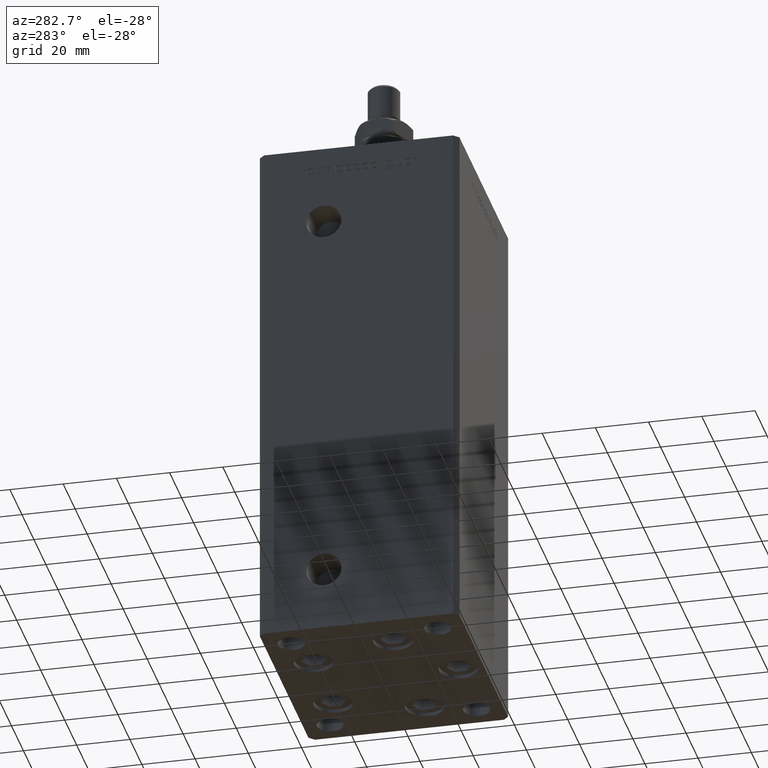
[diagram: clean part render]
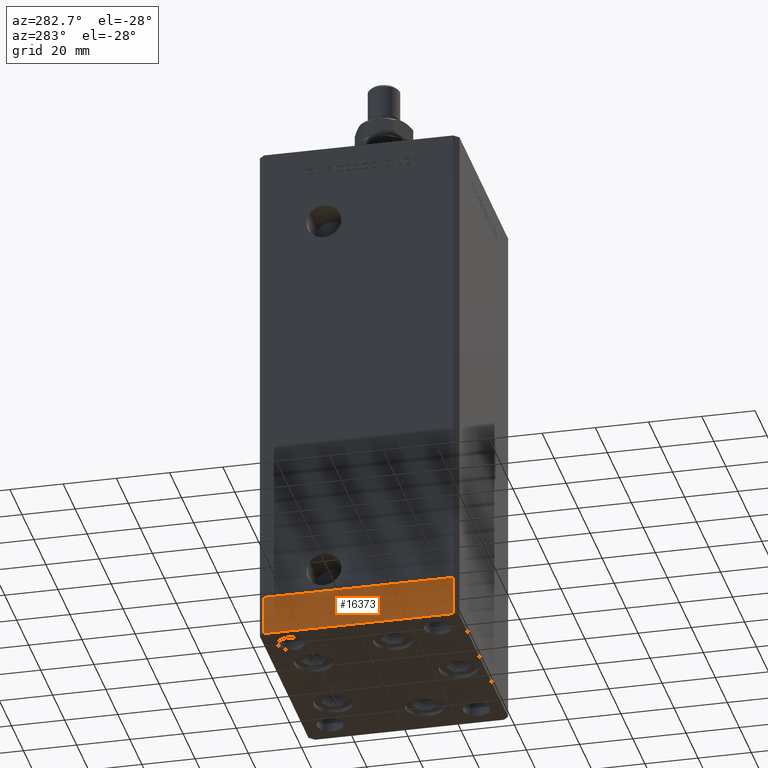
[diagram: same view with one face highlighted and labeled with its STEP entity id]
A machine part, auxiliary view. The second image highlights one B-rep face of the part: STEP entity #16373.
In plain terms, the highlighted planar face has unit normal (-1, 0, 0).
Its self-contained STEP definition (entity closure, byte-faithful):
#1625 = AXIS2_PLACEMENT_3D ( 'NONE', #36161, #32371, #6551 ) ;
#4209 = VERTEX_POINT ( 'NONE', #47865 ) ;
#4463 = DIRECTION ( 'NONE',  ( 0.000000000000000000, 0.000000000000000000, 1.000000000000000000 ) ) ;
#5063 = CARTESIAN_POINT ( 'NONE',  ( 42.50000000000000711, -35.50000000000000000, -15.00000000000000000 ) ) ;
#5905 = CARTESIAN_POINT ( 'NONE',  ( 42.50000000000000711, -35.50000000000000000, 0.000000000000000000 ) ) ;
#6551 = DIRECTION ( 'NONE',  ( -1.172770800660376741E-15, 1.000000000000000000, 0.000000000000000000 ) ) ;
#6944 = LINE ( 'NONE', #16173, #37378 ) ;
#15247 = FACE_OUTER_BOUND ( 'NONE', #21189, .T. ) ;
#16173 = CARTESIAN_POINT ( 'NONE',  ( 42.50000000000000711, -35.50000000000000000, -15.00000000000000000 ) ) ;
#16373 = ADVANCED_FACE ( 'NONE', ( #15247 ), #48376, .T. ) ;
#19663 = ORIENTED_EDGE ( 'NONE', *, *, #42511, .F. ) ;
#21189 = EDGE_LOOP ( 'NONE', ( #24721, #19663, #34714, #32006 ) ) ;
#22446 = EDGE_CURVE ( 'NONE', #29246, #37288, #6944, .T. ) ;
#22644 = EDGE_CURVE ( 'NONE', #37288, #25114, #45763, .T. ) ;
#23178 = VECTOR ( 'NONE', #33912, 1000.000000000000000 ) ;
#24721 = ORIENTED_EDGE ( 'NONE', *, *, #37773, .F. ) ;
#25114 = VERTEX_POINT ( 'NONE', #44493 ) ;
#29246 = VERTEX_POINT ( 'NONE', #5063 ) ;
#32006 = ORIENTED_EDGE ( 'NONE', *, *, #22644, .T. ) ;
#32371 = DIRECTION ( 'NONE',  ( 1.000000000000000000, 1.172770800660376741E-15, -0.000000000000000000 ) ) ;
#32397 = DIRECTION ( 'NONE',  ( 0.000000000000000000, 0.000000000000000000, 1.000000000000000000 ) ) ;
#33912 = DIRECTION ( 'NONE',  ( -1.172770800660376741E-15, 1.000000000000000000, 0.000000000000000000 ) ) ;
#34714 = ORIENTED_EDGE ( 'NONE', *, *, #22446, .T. ) ;
#36161 = CARTESIAN_POINT ( 'NONE',  ( 42.50000000000000711, -35.50000000000000000, -15.00000000000000000 ) ) ;
#36463 = CARTESIAN_POINT ( 'NONE',  ( 42.50000000000000711, -35.50000000000000000, -15.00000000000000000 ) ) ;
#36979 = LINE ( 'NONE', #36463, #42221 ) ;
#37288 = VERTEX_POINT ( 'NONE', #40535 ) ;
#37378 = VECTOR ( 'NONE', #48500, 1000.000000000000000 ) ;
#37773 = EDGE_CURVE ( 'NONE', #4209, #25114, #42587, .T. ) ;
#40535 = CARTESIAN_POINT ( 'NONE',  ( 42.49999999999992895, 35.50000000000000000, -15.00000000000000000 ) ) ;
#41686 = CARTESIAN_POINT ( 'NONE',  ( 42.49999999999992895, 35.50000000000000000, -15.00000000000000000 ) ) ;
#42221 = VECTOR ( 'NONE', #32397, 1000.000000000000000 ) ;
#42511 = EDGE_CURVE ( 'NONE', #29246, #4209, #36979, .T. ) ;
#42587 = LINE ( 'NONE', #5905, #23178 ) ;
#44337 = VECTOR ( 'NONE', #4463, 1000.000000000000000 ) ;
#44493 = CARTESIAN_POINT ( 'NONE',  ( 42.49999999999992895, 35.50000000000000000, 0.000000000000000000 ) ) ;
#45763 = LINE ( 'NONE', #41686, #44337 ) ;
#47865 = CARTESIAN_POINT ( 'NONE',  ( 42.50000000000000711, -35.50000000000000000, 0.000000000000000000 ) ) ;
#48376 = PLANE ( 'NONE',  #1625 ) ;
#48500 = DIRECTION ( 'NONE',  ( -1.172770800660376741E-15, 1.000000000000000000, 0.000000000000000000 ) ) ;